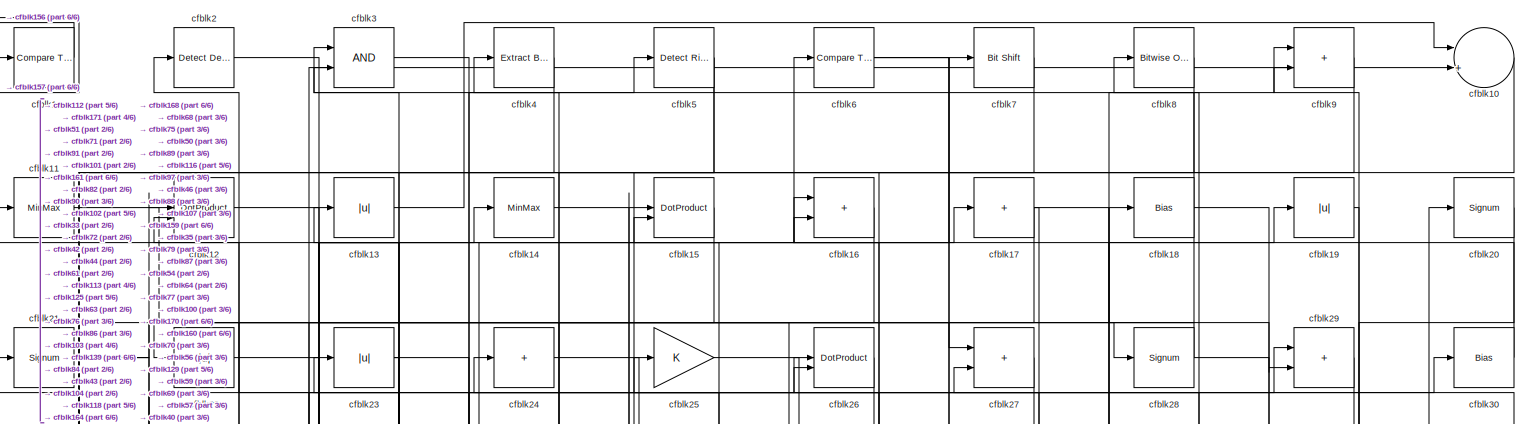
[diagram: root canvas - part 1/6, full width, top band]
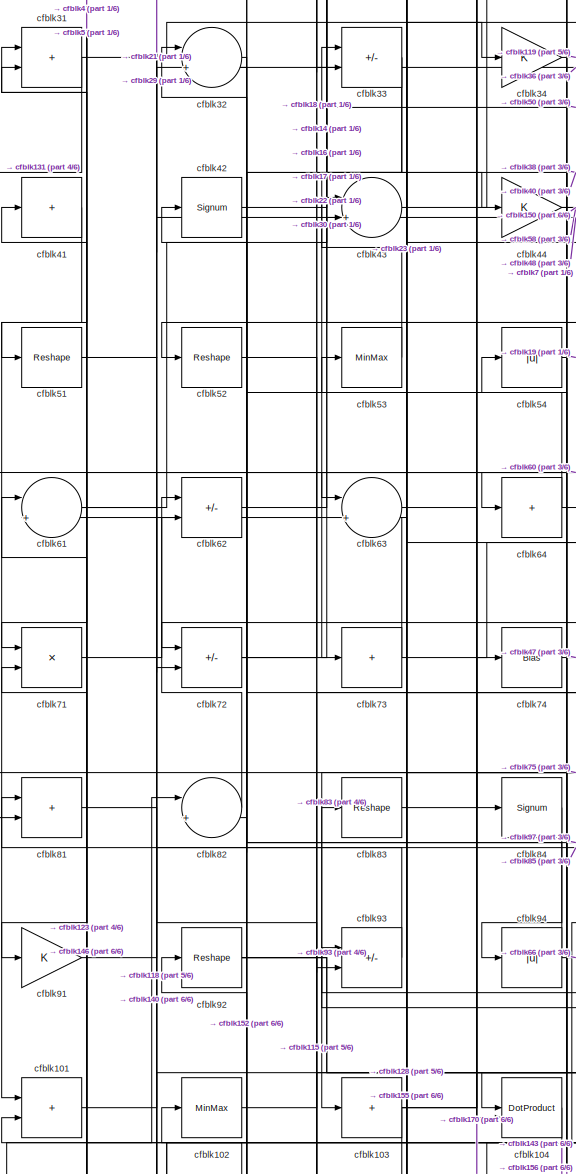
[diagram: root canvas - part 2/6, middle left region]
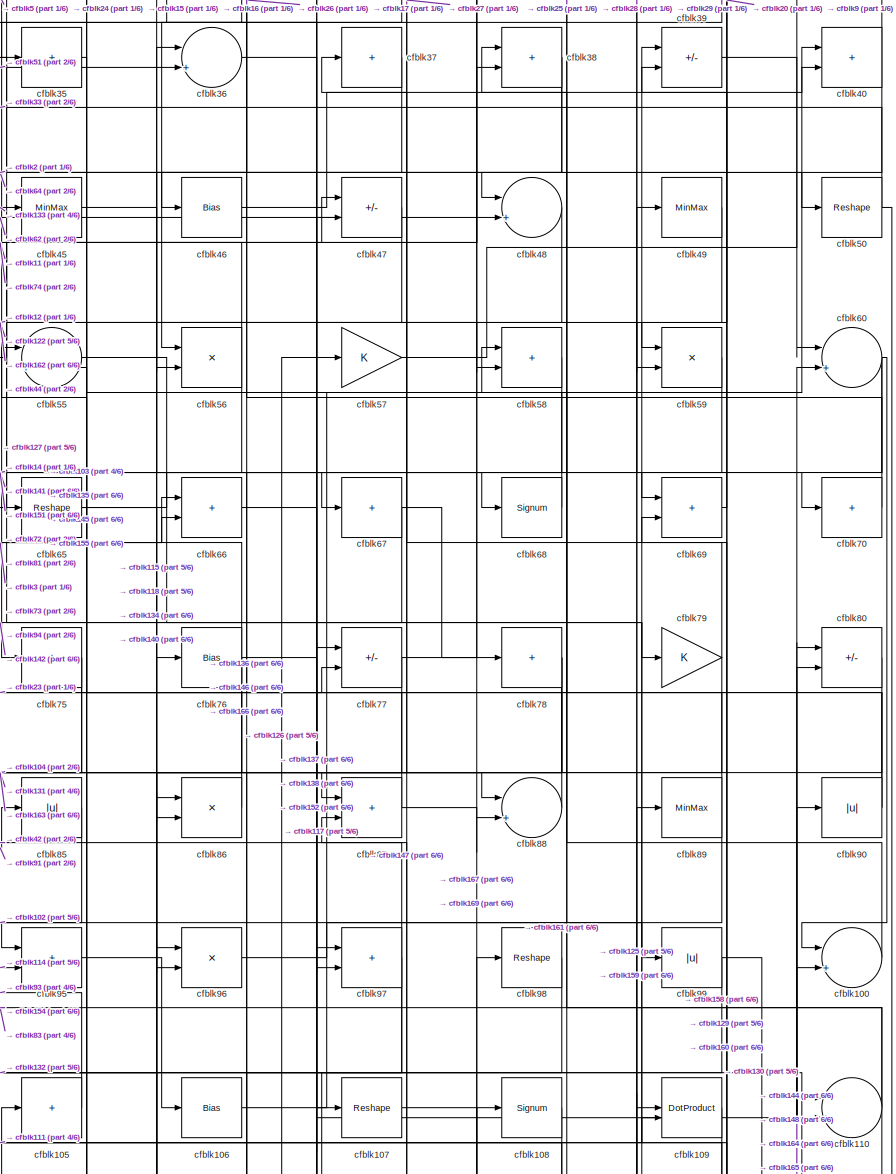
[diagram: root canvas - part 3/6, middle right region]
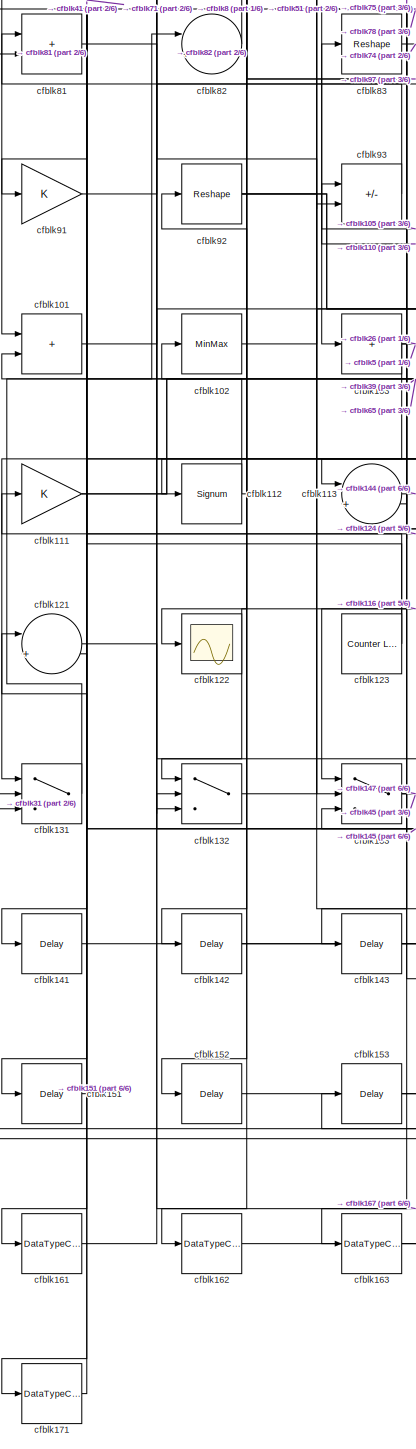
[diagram: root canvas - part 4/6, bottom left region]
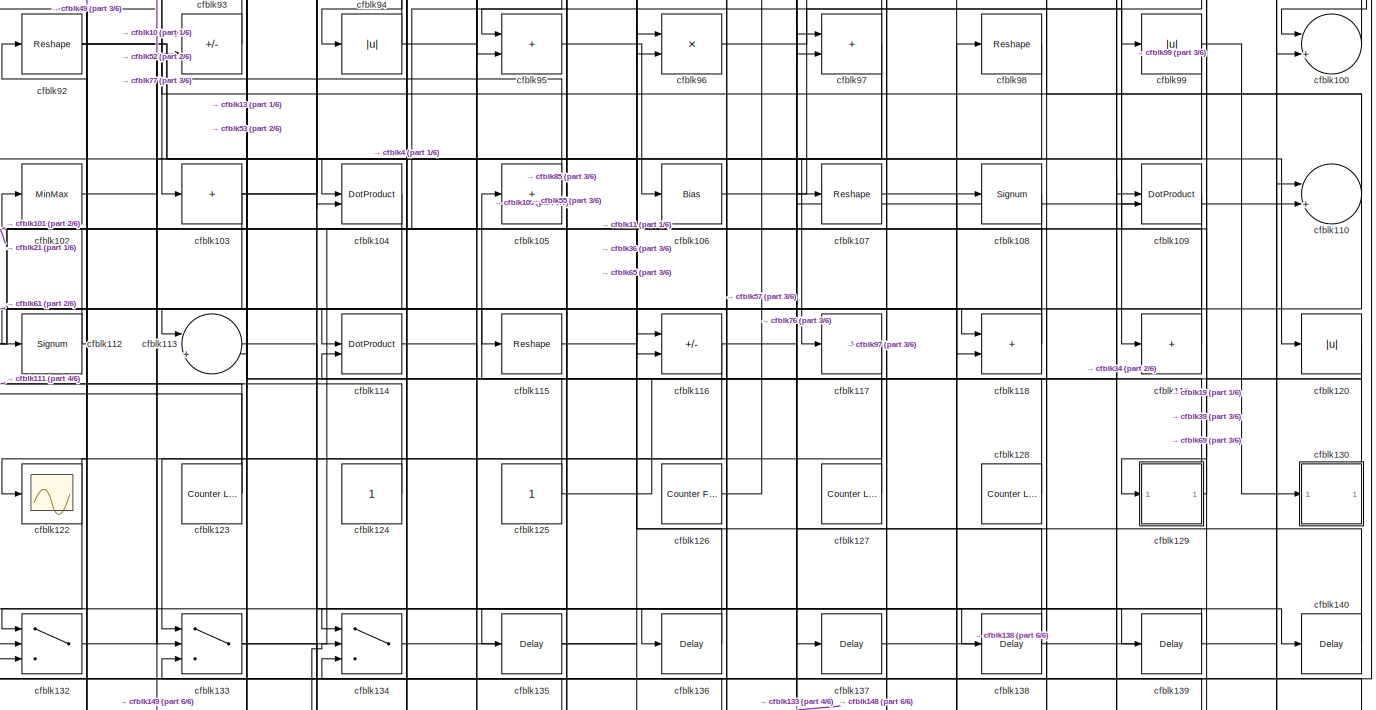
[diagram: root canvas - part 5/6, full width, middle band]
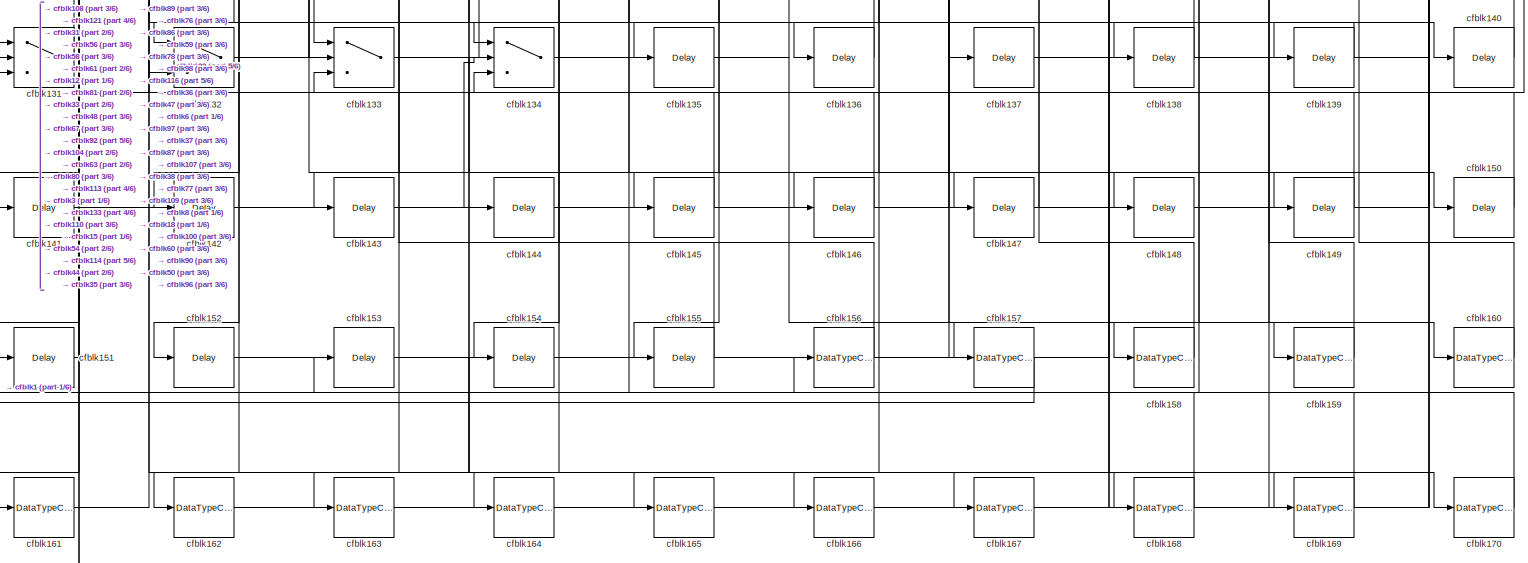
[diagram: root canvas - part 6/6, full width, bottom band]
MODEL slx_09669e8f6b8b
KIND model
CONFIG AbsTol = auto
CONFIG EnableMultiTasking = off
CONFIG FixedStep = auto
CONFIG MaxStep = auto
CONFIG MinStep = auto
CONFIG RelTol = 1e-3
CONFIG SampleTimeConstraint = Unconstrained
CONFIG SolverName = VariableStepAuto
CONFIG StartTime = 0.0
CONFIG StopTime = 10.0
BLOCK [Reference] cfblk1  REF=hdlsllib/Logic and Bit
Operations/Compare
To Zero
  SourceBlock = hdlsllib/Logic and Bit\nOperations/Compare\nTo Zero
  SourceType = Compare To Zero
BLOCK [Sum] cfblk10
  Inputs = |++
BLOCK [Sum] cfblk100
  Inputs = |++
BLOCK [Sum] cfblk101
  IconShape = rectangular
BLOCK [MinMax] cfblk102
BLOCK [Sum] cfblk103
  IconShape = rectangular
  Inputs = +
BLOCK [DotProduct] cfblk104
  OutDataTypeStr = Inherit: Inherit via internal rule
BLOCK [Sum] cfblk105
  IconShape = rectangular
  Inputs = +
BLOCK [Bias] cfblk106
  Bias = 0.0
  SaturateOnIntegerOverflow = off
BLOCK [Reshape] cfblk107
BLOCK [Signum] cfblk108
BLOCK [DotProduct] cfblk109
  OutDataTypeStr = Inherit: Inherit via internal rule
BLOCK [MinMax] cfblk11
BLOCK [Sum] cfblk110
  Inputs = |++
BLOCK [Gain] cfblk111
BLOCK [Signum] cfblk112
BLOCK [Sum] cfblk113
  Inputs = |++
BLOCK [DotProduct] cfblk114
  OutDataTypeStr = Inherit: Inherit via internal rule
BLOCK [Reshape] cfblk115
BLOCK [Sum] cfblk116
  IconShape = rectangular
  Inputs = +-
BLOCK [Sum] cfblk117
  IconShape = rectangular
  Inputs = +
BLOCK [Sum] cfblk118
  IconShape = rectangular
BLOCK [Sum] cfblk119
  IconShape = rectangular
  Inputs = +
BLOCK [DotProduct] cfblk12
  OutDataTypeStr = Inherit: Inherit via internal rule
BLOCK [Abs] cfblk120
  SaturateOnIntegerOverflow = off
BLOCK [Sum] cfblk121
  Inputs = |++
BLOCK [Scope] cfblk122
  Floating = off
  NumInputPorts = 1
  ScopeSpecificationString = Simulink.scopes.TimeScopeBlockCfg('CurrentConfiguration', extmgr.ConfigurationSet(extmgr.Configuration('Core','General UI',true),extmgr.Configuration('Core','Source UI',true),extmgr.Configuration('Sources','WiredSimulink',true,'DataLoggingVariableName','ScopeData2','DataLoggingSaveFormat','Array','DataLoggingLimitDataPoints',true,'DataLoggingDecimation','1'),extmgr.Configuration('Visuals','Time Do...<+868ch>
BLOCK [Reference] cfblk123  REF=hdlsllib/Sources/Counter
Limited
  SourceBlock = hdlsllib/Sources/Counter\nLimited
  SourceType = Counter Limited
BLOCK [Constant] cfblk124
  SampleTime = -1
BLOCK [Constant] cfblk125
  SampleTime = -1
BLOCK [Reference] cfblk126  REF=hdlsllib/Sources/Counter
Free-Running
  SourceBlock = hdlsllib/Sources/Counter\nFree-Running
  SourceType = Counter Free-Running
BLOCK [Reference] cfblk127  REF=hdlsllib/Sources/Counter
Limited
  SourceBlock = hdlsllib/Sources/Counter\nLimited
  SourceType = Counter Limited
BLOCK [Reference] cfblk128  REF=hdlsllib/Sources/Counter
Limited
  SourceBlock = hdlsllib/Sources/Counter\nLimited
  SourceType = Counter Limited
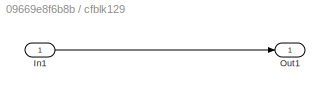
BLOCK [SubSystem] cfblk129
  LibrarySourceBlock = hdlsllib/Ports &\nSubsystems/Subsystem
BLOCK [Inport] cfblk129/In1
BLOCK [Outport] cfblk129/Out1
BLOCK [Abs] cfblk13
  SaturateOnIntegerOverflow = off
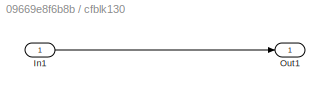
BLOCK [SubSystem] cfblk130
  LibrarySourceBlock = hdlsllib/Ports &\nSubsystems/Subsystem
BLOCK [Inport] cfblk130/In1
BLOCK [Outport] cfblk130/Out1
BLOCK [Switch] cfblk131
  InputSameDT = off
  SaturateOnIntegerOverflow = off
BLOCK [Switch] cfblk132
  InputSameDT = off
  SaturateOnIntegerOverflow = off
BLOCK [Switch] cfblk133
  InputSameDT = off
  SaturateOnIntegerOverflow = off
BLOCK [Switch] cfblk134
  InputSameDT = off
  SaturateOnIntegerOverflow = off
BLOCK [Delay] cfblk135
  InputPortMap = u0
  SampleTime = 1
BLOCK [Delay] cfblk136
  InputPortMap = u0
  SampleTime = 1
BLOCK [Delay] cfblk137
  InputPortMap = u0
  SampleTime = 1
BLOCK [Delay] cfblk138
  InputPortMap = u0
  SampleTime = 1
BLOCK [Delay] cfblk139
  InputPortMap = u0
  SampleTime = 1
BLOCK [MinMax] cfblk14
BLOCK [Delay] cfblk140
  InputPortMap = u0
  SampleTime = 1
BLOCK [Delay] cfblk141
  InputPortMap = u0
  SampleTime = 1
BLOCK [Delay] cfblk142
  InputPortMap = u0
  SampleTime = 1
BLOCK [Delay] cfblk143
  InputPortMap = u0
  SampleTime = 1
BLOCK [Delay] cfblk144
  InputPortMap = u0
  SampleTime = 1
BLOCK [Delay] cfblk145
  InputPortMap = u0
  SampleTime = 1
BLOCK [Delay] cfblk146
  InputPortMap = u0
  SampleTime = 1
BLOCK [Delay] cfblk147
  InputPortMap = u0
  SampleTime = 1
BLOCK [Delay] cfblk148
  InputPortMap = u0
  SampleTime = 1
BLOCK [Delay] cfblk149
  InputPortMap = u0
  SampleTime = 1
BLOCK [DotProduct] cfblk15
  OutDataTypeStr = Inherit: Inherit via internal rule
BLOCK [Delay] cfblk150
  InputPortMap = u0
  SampleTime = 1
BLOCK [Delay] cfblk151
  InputPortMap = u0
  SampleTime = 1
BLOCK [Delay] cfblk152
  InputPortMap = u0
  SampleTime = 1
BLOCK [Delay] cfblk153
  InputPortMap = u0
  SampleTime = 1
BLOCK [Delay] cfblk154
  InputPortMap = u0
  SampleTime = 1
BLOCK [Delay] cfblk155
  InputPortMap = u0
  SampleTime = 1
BLOCK [DataTypeConversion] cfblk156
  OutDataTypeStr = uint8
  RndMeth = Floor
  SaturateOnIntegerOverflow = off
BLOCK [DataTypeConversion] cfblk157
  OutDataTypeStr = uint8
  RndMeth = Floor
  SaturateOnIntegerOverflow = off
BLOCK [DataTypeConversion] cfblk158
  OutDataTypeStr = uint8
  RndMeth = Floor
  SaturateOnIntegerOverflow = off
BLOCK [DataTypeConversion] cfblk159
  OutDataTypeStr = uint8
  RndMeth = Floor
  SaturateOnIntegerOverflow = off
BLOCK [Sum] cfblk16
  IconShape = rectangular
BLOCK [DataTypeConversion] cfblk160
  OutDataTypeStr = uint8
  RndMeth = Floor
  SaturateOnIntegerOverflow = off
BLOCK [DataTypeConversion] cfblk161
  OutDataTypeStr = uint8
  RndMeth = Floor
  SaturateOnIntegerOverflow = off
BLOCK [DataTypeConversion] cfblk162
  OutDataTypeStr = uint8
  RndMeth = Floor
  SaturateOnIntegerOverflow = off
BLOCK [DataTypeConversion] cfblk163
  OutDataTypeStr = uint8
  RndMeth = Floor
  SaturateOnIntegerOverflow = off
BLOCK [DataTypeConversion] cfblk164
  OutDataTypeStr = uint8
  RndMeth = Floor
  SaturateOnIntegerOverflow = off
BLOCK [DataTypeConversion] cfblk165
  OutDataTypeStr = uint8
  RndMeth = Floor
  SaturateOnIntegerOverflow = off
BLOCK [DataTypeConversion] cfblk166
  OutDataTypeStr = uint8
  RndMeth = Floor
  SaturateOnIntegerOverflow = off
BLOCK [DataTypeConversion] cfblk167
  OutDataTypeStr = uint8
  RndMeth = Floor
  SaturateOnIntegerOverflow = off
BLOCK [DataTypeConversion] cfblk168
  OutDataTypeStr = uint8
  RndMeth = Floor
  SaturateOnIntegerOverflow = off
BLOCK [DataTypeConversion] cfblk169
  OutDataTypeStr = uint8
  RndMeth = Floor
  SaturateOnIntegerOverflow = off
BLOCK [Sum] cfblk17
  IconShape = rectangular
  Inputs = +
BLOCK [DataTypeConversion] cfblk170
  OutDataTypeStr = boolean
  RndMeth = Floor
  SaturateOnIntegerOverflow = off
BLOCK [DataTypeConversion] cfblk171
  OutDataTypeStr = uint8
  RndMeth = Floor
  SaturateOnIntegerOverflow = off
BLOCK [Bias] cfblk18
  Bias = 0.0
  SaturateOnIntegerOverflow = off
BLOCK [Abs] cfblk19
  SaturateOnIntegerOverflow = off
BLOCK [Reference] cfblk2  REF=simulink/Logic and Bit
Operations/Detect
Decrease
  LibrarySourceBlock = hdlsllib/Logic and Bit\nOperations/Detect\nDecrease
  SourceBlock = simulink/Logic and Bit\nOperations/Detect\nDecrease
  SourceType = Detect Decrease
BLOCK [Signum] cfblk20
BLOCK [Signum] cfblk21
BLOCK [Abs] cfblk22
  SaturateOnIntegerOverflow = off
BLOCK [Abs] cfblk23
  SaturateOnIntegerOverflow = off
BLOCK [Sum] cfblk24
  IconShape = rectangular
  Inputs = +
BLOCK [Gain] cfblk25
BLOCK [DotProduct] cfblk26
  OutDataTypeStr = Inherit: Inherit via internal rule
BLOCK [Sum] cfblk27
  IconShape = rectangular
BLOCK [Signum] cfblk28
BLOCK [Sum] cfblk29
  IconShape = rectangular
BLOCK [Logic] cfblk3
  AllPortsSameDT = off
  OutDataTypeStr = boolean
BLOCK [Bias] cfblk30
  Bias = 0.0
  SaturateOnIntegerOverflow = off
BLOCK [Sum] cfblk31
  IconShape = rectangular
BLOCK [Sum] cfblk32
  Inputs = |++
BLOCK [Sum] cfblk33
  IconShape = rectangular
  Inputs = +-
BLOCK [Gain] cfblk34
BLOCK [Sum] cfblk35
  IconShape = rectangular
  Inputs = +
BLOCK [Sum] cfblk36
  Inputs = |++
BLOCK [Sum] cfblk37
  IconShape = rectangular
  Inputs = +
BLOCK [Sum] cfblk38
  IconShape = rectangular
BLOCK [Sum] cfblk39
  IconShape = rectangular
  Inputs = +-
BLOCK [Reference] cfblk4  REF=simulink/Logic and Bit
Operations/Extract Bits
  LibrarySourceBlock = hdlsllib/Logic and Bit\nOperations/Extract Bits
  SourceBlock = simulink/Logic and Bit\nOperations/Extract Bits
  SourceType = Extract Bits
BLOCK [Sum] cfblk40
  IconShape = rectangular
BLOCK [Sum] cfblk41
  IconShape = rectangular
  Inputs = +
BLOCK [Signum] cfblk42
BLOCK [Sum] cfblk43
  Inputs = |++
BLOCK [Gain] cfblk44
BLOCK [MinMax] cfblk45
BLOCK [Bias] cfblk46
  Bias = 0.0
  SaturateOnIntegerOverflow = off
BLOCK [Sum] cfblk47
  IconShape = rectangular
  Inputs = +-
BLOCK [Sum] cfblk48
  Inputs = |++
BLOCK [MinMax] cfblk49
BLOCK [Reference] cfblk5  REF=hdlsllib/Logic and Bit
Operations/Detect Rise
Nonnegative
  SourceBlock = hdlsllib/Logic and Bit\nOperations/Detect Rise\nNonnegative
  SourceType = Detect Rise Nonnegative
BLOCK [Reshape] cfblk50
BLOCK [Reshape] cfblk51
BLOCK [Reshape] cfblk52
BLOCK [MinMax] cfblk53
BLOCK [Abs] cfblk54
  SaturateOnIntegerOverflow = off
BLOCK [Sum] cfblk55
  Inputs = |++
BLOCK [Product] cfblk56
  Inputs = */
  RndMeth = Zero
  SaturateOnIntegerOverflow = on
BLOCK [Gain] cfblk57
BLOCK [Sum] cfblk58
  IconShape = rectangular
BLOCK [Product] cfblk59
  Inputs = */
  RndMeth = Zero
  SaturateOnIntegerOverflow = on
BLOCK [Reference] cfblk6  REF=hdlsllib/Logic and Bit
Operations/Compare
To Zero
  SourceBlock = hdlsllib/Logic and Bit\nOperations/Compare\nTo Zero
  SourceType = Compare To Zero
BLOCK [Sum] cfblk60
  Inputs = |++
BLOCK [Sum] cfblk61
  Inputs = |++
BLOCK [Sum] cfblk62
  IconShape = rectangular
  Inputs = +-
BLOCK [Sum] cfblk63
  Inputs = |++
BLOCK [Sum] cfblk64
  IconShape = rectangular
  Inputs = +
BLOCK [Reshape] cfblk65
BLOCK [Sum] cfblk66
  IconShape = rectangular
BLOCK [Sum] cfblk67
  IconShape = rectangular
  Inputs = +
BLOCK [Signum] cfblk68
BLOCK [Sum] cfblk69
  IconShape = rectangular
BLOCK [Reference] cfblk7  REF=hdlsllib/Logic and Bit
Operations/Bit Shift
  SourceBlock = hdlsllib/Logic and Bit\nOperations/Bit Shift
  SourceType = Bit Shift
BLOCK [Sum] cfblk70
  IconShape = rectangular
  Inputs = +
BLOCK [Product] cfblk71
  Inputs = */
  RndMeth = Zero
  SaturateOnIntegerOverflow = on
BLOCK [Sum] cfblk72
  IconShape = rectangular
  Inputs = +-
BLOCK [Sum] cfblk73
  IconShape = rectangular
  Inputs = +
BLOCK [Bias] cfblk74
  Bias = 0.0
  SaturateOnIntegerOverflow = off
BLOCK [Sum] cfblk75
  IconShape = rectangular
  Inputs = +
BLOCK [Bias] cfblk76
  Bias = 0.0
  SaturateOnIntegerOverflow = off
BLOCK [Sum] cfblk77
  IconShape = rectangular
  Inputs = +-
BLOCK [Sum] cfblk78
  IconShape = rectangular
  Inputs = +
BLOCK [Gain] cfblk79
BLOCK [Reference] cfblk8  REF=simulink/Logic and Bit
Operations/Bitwise
Operator
  LibrarySourceBlock = hdlsllib/Logic and Bit\nOperations/Bitwise\nOperator
  SourceBlock = simulink/Logic and Bit\nOperations/Bitwise\nOperator
  SourceType = Bitwise Operator
BLOCK [Sum] cfblk80
  IconShape = rectangular
  Inputs = +-
BLOCK [Sum] cfblk81
  IconShape = rectangular
BLOCK [Sum] cfblk82
  Inputs = |++
BLOCK [Reshape] cfblk83
BLOCK [Signum] cfblk84
BLOCK [Abs] cfblk85
  SaturateOnIntegerOverflow = off
BLOCK [Product] cfblk86
  Inputs = */
  RndMeth = Zero
  SaturateOnIntegerOverflow = on
BLOCK [Sum] cfblk87
  IconShape = rectangular
BLOCK [Sum] cfblk88
  Inputs = |++
BLOCK [MinMax] cfblk89
BLOCK [Sum] cfblk9
  IconShape = rectangular
BLOCK [Abs] cfblk90
  SaturateOnIntegerOverflow = off
BLOCK [Gain] cfblk91
BLOCK [Reshape] cfblk92
BLOCK [Sum] cfblk93
  IconShape = rectangular
  Inputs = +-
BLOCK [Abs] cfblk94
  SaturateOnIntegerOverflow = off
BLOCK [Sum] cfblk95
  IconShape = rectangular
BLOCK [Product] cfblk96
  Inputs = */
  RndMeth = Zero
  SaturateOnIntegerOverflow = on
BLOCK [Sum] cfblk97
  IconShape = rectangular
BLOCK [Reshape] cfblk98
BLOCK [Abs] cfblk99
  SaturateOnIntegerOverflow = off
LINE cfblk100:1 -> cfblk25:1
LINE cfblk101:1 -> cfblk29:1
LINE cfblk102:1 -> cfblk10:2
NET cfblk103:1 -> cfblk131:1, cfblk26:2, cfblk5:1
LINE cfblk104:1 -> cfblk143:1
LINE cfblk105:1 -> cfblk93:1
LINE cfblk106:1 -> cfblk40:1
LINE cfblk107:1 -> cfblk169:1
LINE cfblk108:1 -> cfblk161:1
LINE cfblk109:1 -> cfblk158:1
LINE cfblk10:1 -> cfblk113:1
NET cfblk110:1 -> cfblk154:1, cfblk58:1, cfblk83:1
NET cfblk111:1 -> cfblk39:1, cfblk65:1
NET cfblk112:1 -> cfblk21:1, cfblk92:1
LINE cfblk113:1 -> cfblk144:1
LINE cfblk114:1 -> cfblk138:1
LINE cfblk115:1 -> cfblk36:1
NET cfblk116:1 -> cfblk133:1, cfblk148:1
LINE cfblk117:1 -> cfblk132:1
NET cfblk118:1 -> cfblk112:1, cfblk4:1
LINE cfblk119:1 -> cfblk101:2
LINE cfblk11:1 -> cfblk116:1
LINE cfblk120:1 -> cfblk114:2
LINE cfblk121:1 -> cfblk167:1
NET cfblk123:1 -> cfblk41:1, cfblk71:2
LINE cfblk124:1 -> cfblk111:1
NET cfblk125:1 -> cfblk13:1, cfblk49:1
LINE cfblk126:1 -> cfblk57:1
LINE cfblk127:1 -> cfblk105:1
LINE cfblk128:1 -> cfblk53:1
LINE cfblk129/In1:1 -> cfblk129/Out1:1
NET cfblk129:1 -> cfblk39:2, cfblk55:2
LINE cfblk12:1 -> cfblk59:2
LINE cfblk130/In1:1 -> cfblk130/Out1:1
LINE cfblk130:1 -> cfblk69:2
LINE cfblk131:1 -> cfblk82:1
LINE cfblk132:1 -> cfblk77:2
NET cfblk133:1 -> cfblk147:1, cfblk45:1
LINE cfblk134:1 -> cfblk76:1
LINE cfblk135:1 -> cfblk157:1
LINE cfblk136:1 -> cfblk86:1
LINE cfblk137:1 -> cfblk60:2
LINE cfblk138:1 -> cfblk77:1
LINE cfblk139:1 -> cfblk134:1
LINE cfblk13:1 -> cfblk10:1
LINE cfblk140:1 -> cfblk96:1
LINE cfblk141:1 -> cfblk134:2
LINE cfblk142:1 -> cfblk97:1
LINE cfblk143:1 -> cfblk165:1
LINE cfblk144:1 -> cfblk100:2
LINE cfblk145:1 -> cfblk133:3
LINE cfblk146:1 -> cfblk31:2
LINE cfblk147:1 -> cfblk87:2
LINE cfblk148:1 -> cfblk110:1
LINE cfblk149:1 -> cfblk132:2
LINE cfblk14:1 -> cfblk68:1
LINE cfblk150:1 -> cfblk61:1
LINE cfblk151:1 -> cfblk121:2
LINE cfblk152:1 -> cfblk47:2
LINE cfblk153:1 -> cfblk168:1
LINE cfblk154:1 -> cfblk38:2
LINE cfblk155:1 -> cfblk63:2
LINE cfblk156:1 -> cfblk54:1
LINE cfblk157:1 -> cfblk1:1
LINE cfblk158:1 -> cfblk37:1
LINE cfblk159:1 -> cfblk109:1
LINE cfblk15:1 -> cfblk164:1
LINE cfblk160:1 -> cfblk109:2
LINE cfblk161:1 -> cfblk12:1
LINE cfblk162:1 -> cfblk108:1
LINE cfblk163:1 -> cfblk90:1
LINE cfblk164:1 -> cfblk80:1
LINE cfblk165:1 -> cfblk80:2
LINE cfblk166:1 -> cfblk89:1
LINE cfblk167:1 -> cfblk98:1
LINE cfblk168:1 -> cfblk15:1
LINE cfblk169:1 -> cfblk153:1
LINE cfblk16:1 -> cfblk82:2
LINE cfblk170:1 -> cfblk8:1
LINE cfblk171:1 -> cfblk121:1
NET cfblk17:1 -> cfblk29:2, cfblk87:1, cfblk91:1
NET cfblk18:1 -> cfblk160:1, cfblk33:2, cfblk3:1
LINE cfblk19:1 -> cfblk129:1
LINE cfblk1:1 -> cfblk156:1
LINE cfblk20:1 -> cfblk59:1
NET cfblk21:1 -> cfblk28:1, cfblk43:2
LINE cfblk22:1 -> cfblk44:1
NET cfblk23:1 -> cfblk63:1, cfblk84:1
LINE cfblk24:1 -> cfblk50:1
LINE cfblk25:1 -> cfblk97:2
LINE cfblk26:1 -> cfblk113:2
LINE cfblk27:1 -> cfblk35:1
NET cfblk28:1 -> cfblk22:1, cfblk70:1
LINE cfblk29:1 -> cfblk56:1
LINE cfblk2:1 -> cfblk107:1
LINE cfblk30:1 -> cfblk6:1
NET cfblk31:1 -> cfblk131:3, cfblk34:1
LINE cfblk32:1 -> cfblk52:1
NET cfblk33:1 -> cfblk152:1, cfblk73:1
LINE cfblk34:1 -> cfblk119:1
LINE cfblk35:1 -> cfblk135:1
LINE cfblk36:1 -> cfblk137:1
LINE cfblk37:1 -> cfblk56:2
NET cfblk38:1 -> cfblk48:1, cfblk72:1
LINE cfblk39:1 -> cfblk60:1
LINE cfblk3:1 -> cfblk139:1
NET cfblk40:1 -> cfblk2:1, cfblk64:1
LINE cfblk41:1 -> cfblk101:1
LINE cfblk42:1 -> cfblk17:1
LINE cfblk43:1 -> cfblk7:1
NET cfblk44:1 -> cfblk150:1, cfblk58:2
LINE cfblk45:1 -> cfblk67:1
LINE cfblk46:1 -> cfblk40:2
LINE cfblk47:1 -> cfblk95:1
LINE cfblk48:1 -> cfblk162:1
LINE cfblk49:1 -> cfblk122:1
LINE cfblk4:1 -> cfblk51:1
NET cfblk50:1 -> cfblk134:3, cfblk33:1
NET cfblk51:1 -> cfblk31:1, cfblk36:2, cfblk93:2
LINE cfblk52:1 -> cfblk115:1
LINE cfblk53:1 -> cfblk43:1
LINE cfblk54:1 -> cfblk19:1
LINE cfblk55:1 -> cfblk79:1
NET cfblk56:1 -> cfblk11:1, cfblk141:1
LINE cfblk57:1 -> cfblk20:1
LINE cfblk58:1 -> cfblk151:1
LINE cfblk59:1 -> cfblk136:1
NET cfblk5:1 -> cfblk71:1, cfblk75:1
NET cfblk60:1 -> cfblk100:1, cfblk72:2, cfblk81:2
NET cfblk61:1 -> cfblk118:2, cfblk16:1
LINE cfblk62:1 -> cfblk48:2
LINE cfblk63:1 -> cfblk170:1
NET cfblk64:1 -> cfblk18:1, cfblk32:2
NET cfblk65:1 -> cfblk118:1, cfblk69:1
LINE cfblk66:1 -> cfblk88:1
NET cfblk67:1 -> cfblk142:1, cfblk78:1
LINE cfblk68:1 -> cfblk24:1
LINE cfblk69:1 -> cfblk9:1
NET cfblk6:1 -> cfblk159:1, cfblk27:1
LINE cfblk70:1 -> cfblk26:1
LINE cfblk71:1 -> cfblk62:2
NET cfblk72:1 -> cfblk14:1, cfblk30:1
NET cfblk73:1 -> cfblk61:2, cfblk66:2
LINE cfblk74:1 -> cfblk47:1
NET cfblk75:1 -> cfblk104:2, cfblk131:2
NET cfblk76:1 -> cfblk110:2, cfblk114:1, cfblk3:2, cfblk95:2
NET cfblk77:1 -> cfblk86:2, cfblk9:2
NET cfblk78:1 -> cfblk103:1, cfblk145:1, cfblk146:1
NET cfblk79:1 -> cfblk27:2, cfblk96:2
LINE cfblk7:1 -> cfblk104:1
LINE cfblk80:1 -> cfblk163:1
LINE cfblk81:1 -> cfblk140:1
LINE cfblk82:1 -> cfblk62:1
LINE cfblk83:1 -> cfblk74:1
LINE cfblk84:1 -> cfblk94:1
LINE cfblk85:1 -> cfblk102:1
LINE cfblk86:1 -> cfblk23:1
NET cfblk87:1 -> cfblk55:1, cfblk88:2
LINE cfblk88:1 -> cfblk16:2
NET cfblk89:1 -> cfblk155:1, cfblk15:2
LINE cfblk8:1 -> cfblk171:1
NET cfblk90:1 -> cfblk12:2, cfblk38:1
LINE cfblk91:1 -> cfblk85:1
NET cfblk92:1 -> cfblk116:2, cfblk120:1, cfblk149:1
LINE cfblk93:1 -> cfblk81:1
NET cfblk94:1 -> cfblk32:1, cfblk66:1
LINE cfblk95:1 -> cfblk106:1
LINE cfblk96:1 -> cfblk99:1
NET cfblk97:1 -> cfblk132:3, cfblk133:2, cfblk42:1
LINE cfblk98:1 -> cfblk166:1
NET cfblk99:1 -> cfblk117:1, cfblk130:1
LINE cfblk9:1 -> cfblk46:1
note: NET lines group one-source signal fan-out (src -> all destinations, sorted); 1:1 wires keep LINE
